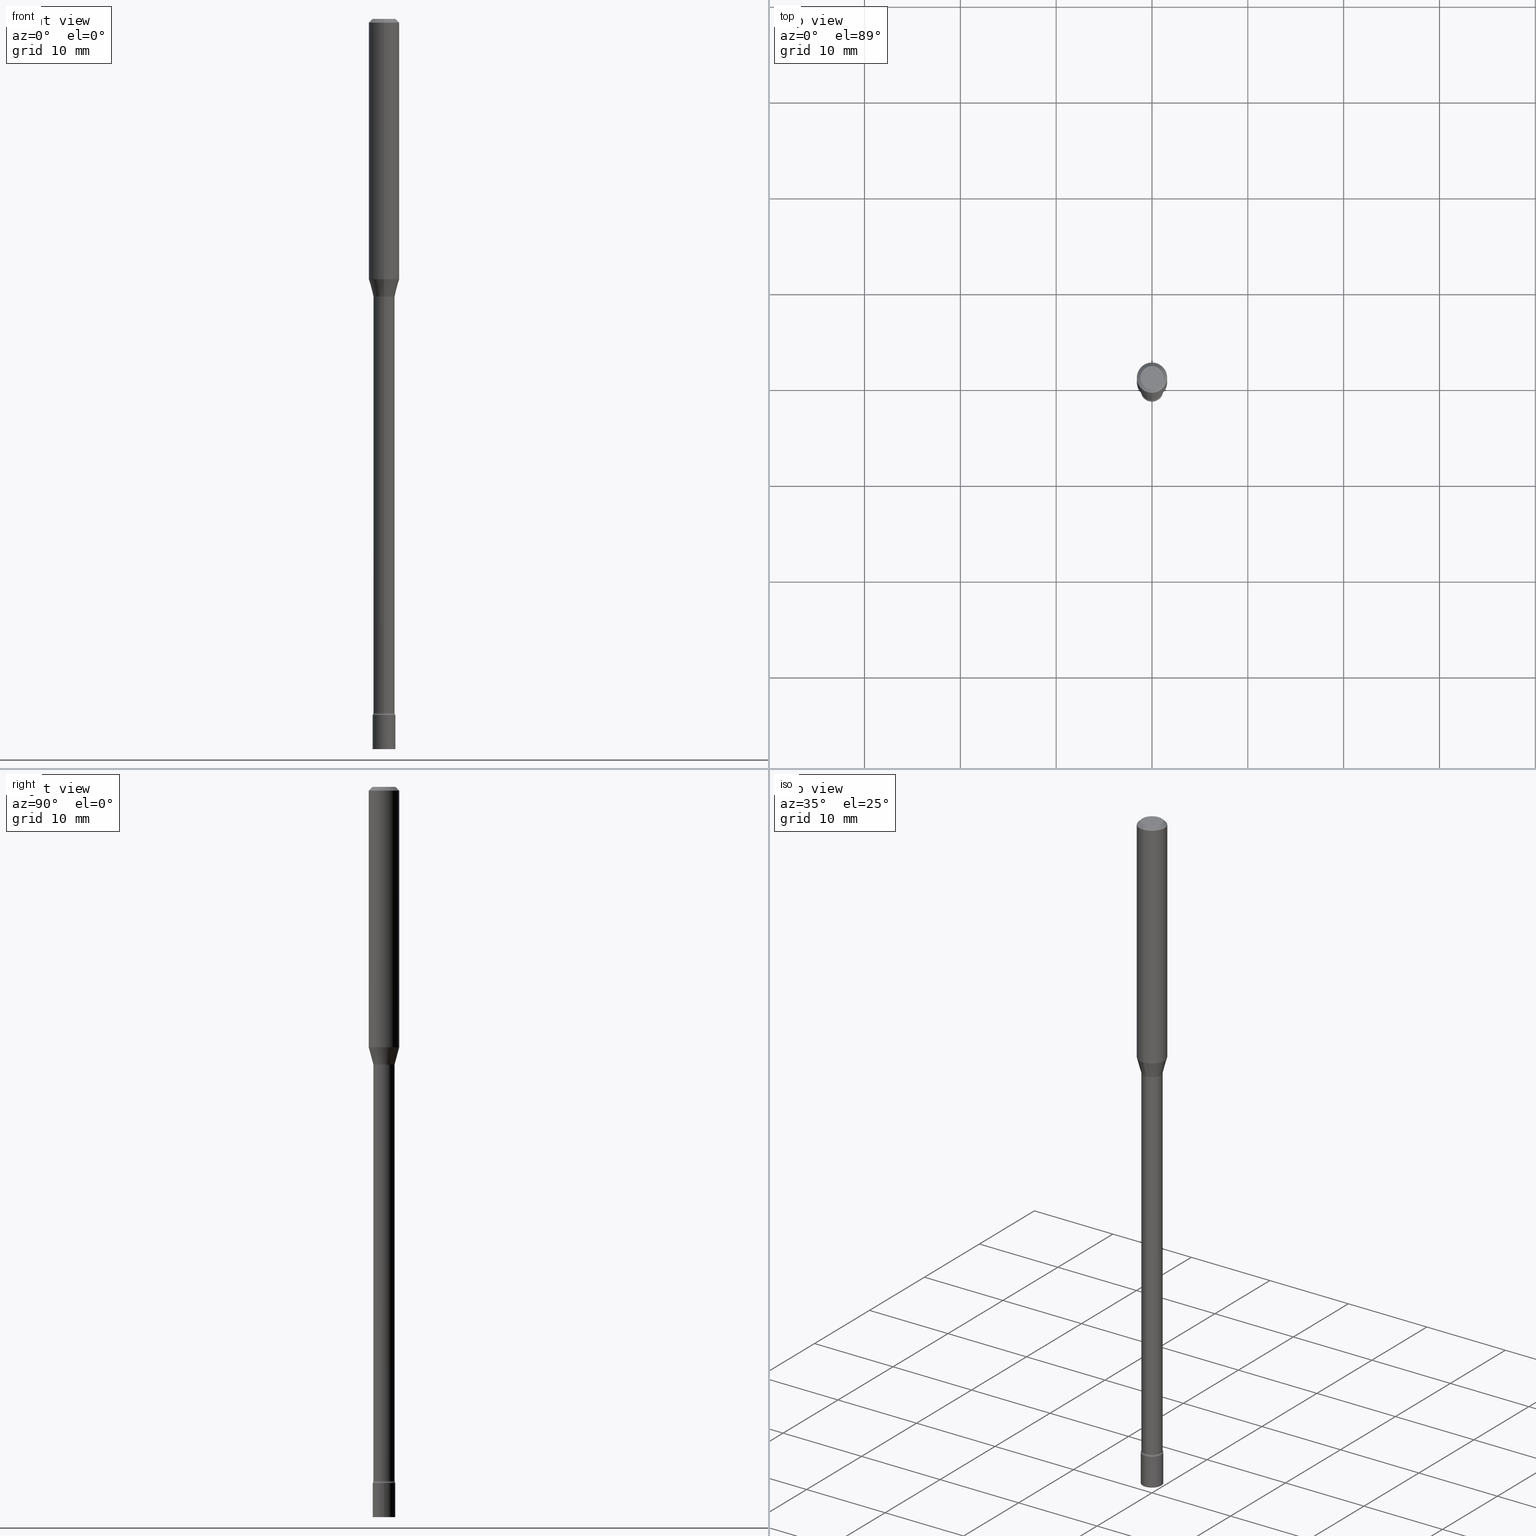
[diagram: canonical four-view strip — front | top / right | iso, engineering-drawing reading convention]
A machine part, canonical four-view strip (front | top / right | iso — engineering-drawing reading convention). The complete STEP part file that produces these views, byte-faithful:
ISO-10303-21;
HEADER;
FILE_DESCRIPTION (( 'STEP AP203' ),
    '1' );
FILE_NAME ('03664.STEP',
    '2024-03-08T22:27:00',
    ( '' ),
    ( '' ),
    'SwSTEP 2.0',
    'SolidWorks 2023',
    '' );
FILE_SCHEMA (( 'CONFIG_CONTROL_DESIGN' ));
ENDSEC;

DATA;
#1 = ORIENTED_EDGE ( 'NONE', *, *, #173, .F. ) ;
#2 = DIRECTION ( 'NONE',  ( -6.982962677686266711E-15, -1.000000000000000000, 3.089549021340711373E-15 ) ) ;
#3 = EDGE_CURVE ( 'NONE', #155, #232, #441, .T. ) ;
#4 = AXIS2_PLACEMENT_3D ( 'NONE', #181, #471, #508 ) ;
#5 = CIRCLE ( 'NONE', #97, 0.06250000000000000000 ) ;
#6 = LOCAL_TIME ( 17, 27, 0.000000000000000000, #99 ) ;
#7 = LINE ( 'NONE', #367, #258 ) ;
#8 = PERSON_AND_ORGANIZATION ( #273, #371 ) ;
#9 = DIRECTION ( 'NONE',  ( -2.445452186311663460E-29, 3.491505139447903761E-15, 1.000000000000000000 ) ) ;
#10 = VERTEX_POINT ( 'NONE', #77 ) ;
#11 = EDGE_CURVE ( 'NONE', #472, #333, #481, .T. ) ;
#12 = SECURITY_CLASSIFICATION_LEVEL ( 'unclassified' ) ;
#13 = CARTESIAN_POINT ( 'NONE',  ( -3.247077645123415839E-16, -0.04650000000000999167, -2.859999999999999876 ) ) ;
#14 = ORIENTED_EDGE ( 'NONE', *, *, #239, .F. ) ;
#15 = CIRCLE ( 'NONE', #4, 0.04649999999999999967 ) ;
#16 = LINE ( 'NONE', #370, #183 ) ;
#17 = ORIENTED_EDGE ( 'NONE', *, *, #314, .T. ) ;
#18 = DIRECTION ( 'NONE',  ( -6.982962677686265922E-15, -1.000000000000000000, 3.491505139447903761E-15 ) ) ;
#19 = CYLINDRICAL_SURFACE ( 'NONE', #207, 0.04649999999999999967 ) ;
#20 = EDGE_CURVE ( 'NONE', #88, #401, #198, .T. ) ;
#21 = CARTESIAN_POINT ( 'NONE',  ( 7.070482203943326931E-46, -1.009491213593364023E-31, -2.891278039914299951E-17 ) ) ;
#22 = AXIS2_PLACEMENT_3D ( 'NONE', #104, #434, #381 ) ;
#23 = CIRCLE ( 'NONE', #336, 0.04421111260566398804 ) ;
#24 = ORIENTED_EDGE ( 'NONE', *, *, #84, .F. ) ;
#25 = CARTESIAN_POINT ( 'NONE',  ( 3.668178279467502056E-31, -5.237257709171866513E-17, -0.01500000000000003067 ) ) ;
#26 = EDGE_LOOP ( 'NONE', ( #217, #44, #130, #312 ) ) ;
#27 = FACE_OUTER_BOUND ( 'NONE', #41, .T. ) ;
#28 = DIRECTION ( 'NONE',  ( -2.445468806185136597E-29, 3.491481338843145583E-15, 1.000000000000000000 ) ) ;
#29 = CC_DESIGN_PERSON_AND_ORGANIZATION_ASSIGNMENT ( #311, #176, ( #242 ) ) ;
#30 = CYLINDRICAL_SURFACE ( 'NONE', #108, 0.04370000000000010681 ) ;
#31 = PLANE ( 'NONE',  #509 ) ;
#32 = EDGE_LOOP ( 'NONE', ( #209, #405, #113, #357 ) ) ;
#33 = FACE_OUTER_BOUND ( 'NONE', #32, .T. ) ;
#34 = CIRCLE ( 'NONE', #402, 0.06250000000000000000 ) ;
#35 = EDGE_LOOP ( 'NONE', ( #347, #1 ) ) ;
#36 = CARTESIAN_POINT ( 'NONE',  ( 3.204547738278756968E-16, 0.04369999999999025359, -2.851273030308291823 ) ) ;
#37 = ORIENTED_EDGE ( 'NONE', *, *, #165, .F. ) ;
#38 =( LENGTH_UNIT ( ) NAMED_UNIT ( * ) SI_UNIT ( $, .METRE. ) );
#39 = LENGTH_MEASURE_WITH_UNIT ( LENGTH_MEASURE( 0.02539999999999999897 ), #38 );
#40 = AXIS2_PLACEMENT_3D ( 'NONE', #418, #158, #313 ) ;
#41 = EDGE_LOOP ( 'NONE', ( #95, #24 ) ) ;
#42 = CONICAL_SURFACE ( 'NONE', #431, 0.04421111260566398804, 0.2617993877991495744 ) ;
#43 = LOCAL_TIME ( 17, 27, 0.000000000000000000, #409 ) ;
#44 = ORIENTED_EDGE ( 'NONE', *, *, #485, .T. ) ;
#45 = EDGE_CURVE ( 'NONE', #10, #221, #126, .T. ) ;
#46 = CIRCLE ( 'NONE', #225, 0.01499999999999998557 ) ;
#47 = PERSON_AND_ORGANIZATION_ROLE ( 'design_owner' ) ;
#48 = ADVANCED_FACE ( 'NONE', ( #320 ), #421, .T. ) ;
#49 = PERSON_AND_ORGANIZATION ( #273, #371 ) ;
#50 = CARTESIAN_POINT ( 'NONE',  ( 3.105071755272341079E-16, 0.04369999999999601287, -1.141974787463811092 ) ) ;
#51 = EDGE_LOOP ( 'NONE', ( #147, #424 ) ) ;
#52 = DIRECTION ( 'NONE',  ( -2.445452186311663460E-29, 3.491505139447903761E-15, 1.000000000000000000 ) ) ;
#53 = AXIS2_PLACEMENT_3D ( 'NONE', #479, #270, #442 ) ;
#54 = LOCAL_TIME ( 17, 27, 0.000000000000000000, #233 ) ;
#55 = LOCAL_TIME ( 17, 27, 0.000000000000000000, #449 ) ;
#56 = DIRECTION ( 'NONE',  ( -2.445468806185136597E-29, 3.491481338843145583E-15, 1.000000000000000000 ) ) ;
#57 = ORIENTED_EDGE ( 'NONE', *, *, #58, .F. ) ;
#58 = EDGE_CURVE ( 'NONE', #419, #221, #7, .T. ) ;
#59 = PRODUCT_DEFINITION_SHAPE ( 'NONE', 'NONE',  #122 ) ;
#60 = PLANE ( 'NONE',  #163 ) ;
#61 = DIRECTION ( 'NONE',  ( 1.000000000000000000, -6.982962677686280121E-15, 0.000000000000000000 ) ) ;
#62 = VECTOR ( 'NONE', #319, 39.37007874015748143 ) ;
#63 = AXIS2_PLACEMENT_3D ( 'NONE', #295, #466, #134 ) ;
#64 = ORIENTED_EDGE ( 'NONE', *, *, #314, .F. ) ;
#65 = CARTESIAN_POINT ( 'NONE',  ( 2.783150796720597811E-29, -3.973655819157387620E-15, -1.138092501787273170 ) ) ;
#66 = EDGE_CURVE ( 'NONE', #353, #263, #372, .T. ) ;
#67 = DIRECTION ( 'NONE',  ( 1.000000000000000000, -6.982962677686265922E-15, 4.876176775795935793E-29 ) ) ;
#68 = EDGE_LOOP ( 'NONE', ( #14, #345, #427, #187 ) ) ;
#69 = DIRECTION ( 'NONE',  ( -2.445452186311663460E-29, 3.491505139447903761E-15, 1.000000000000000000 ) ) ;
#70 = DIRECTION ( 'NONE',  ( 6.982962677686265922E-15, 1.000000000000000000, -3.491505139447903761E-15 ) ) ;
#71 = ORIENTED_EDGE ( 'NONE', *, *, #492, .T. ) ;
#72 = DIRECTION ( 'NONE',  ( 6.982962677686265922E-15, 1.000000000000000000, -3.483106191921935554E-15 ) ) ;
#73 = EDGE_LOOP ( 'NONE', ( #64, #321, #376, #455 ) ) ;
#74 = ORIENTED_EDGE ( 'NONE', *, *, #66, .F. ) ;
#75 = CARTESIAN_POINT ( 'NONE',  ( 2.783150796720597811E-29, -3.973655819157387620E-15, -1.138092501787273170 ) ) ;
#76 = CIRCLE ( 'NONE', #361, 0.06250000000000000000 ) ;
#77 = CARTESIAN_POINT ( 'NONE',  ( 4.440892098500886486E-16, 0.06249999999999626688, -1.069837444817705485 ) ) ;
#78 = DIRECTION ( 'NONE',  ( -2.445452186311663460E-29, 3.491505139447903761E-15, 1.000000000000000000 ) ) ;
#79 = CC_DESIGN_PERSON_AND_ORGANIZATION_ASSIGNMENT ( #404, #90, ( #122 ) ) ;
#80 = DIRECTION ( 'NONE',  ( 0.000000000000000000, 0.000000000000000000, 1.000000000000000000 ) ) ;
#81 = ORIENTED_EDGE ( 'NONE', *, *, #457, .F. ) ;
#82 = AXIS2_PLACEMENT_3D ( 'NONE', #189, #78, #433 ) ;
#83 = APPROVAL_PERSON_ORGANIZATION ( #49, #498, #277 ) ;
#84 = EDGE_CURVE ( 'NONE', #232, #226, #250, .T. ) ;
#85 = DATE_AND_TIME ( #86, #54 ) ;
#86 = CALENDAR_DATE ( 2024, 8, 3 ) ;
#87 = AXIS2_PLACEMENT_3D ( 'NONE', #75, #227, #276 ) ;
#88 = VERTEX_POINT ( 'NONE', #50 ) ;
#89 = MANIFOLD_SOLID_BREP ( 'Body-Move/Copy2[1]', #152 ) ;
#90 = PERSON_AND_ORGANIZATION_ROLE ( 'creator' ) ;
#91 = EDGE_LOOP ( 'NONE', ( #179, #436, #71, #171 ) ) ;
#92 = DATE_TIME_ROLE ( 'classification_date' ) ;
#93 = FACE_OUTER_BOUND ( 'NONE', #35, .T. ) ;
#94 = DIRECTION ( 'NONE',  ( -2.445452186311663460E-29, 3.491505139447903761E-15, 1.000000000000000000 ) ) ;
#95 = ORIENTED_EDGE ( 'NONE', *, *, #191, .F. ) ;
#96 = DIRECTION ( 'NONE',  ( -2.445468806185136877E-29, 3.491481338843145188E-15, 1.000000000000000000 ) ) ;
#97 = AXIS2_PLACEMENT_3D ( 'NONE', #440, #192, #473 ) ;
#98 = CC_DESIGN_DATE_AND_TIME_ASSIGNMENT ( #196, #244, ( #122 ) ) ;
#99 = COORDINATED_UNIVERSAL_TIME_OFFSET ( 5, 0, .BEHIND. ) ;
#100 = DIRECTION ( 'NONE',  ( -6.982962677686266711E-15, -1.000000000000000000, 3.089549021340711373E-15 ) ) ;
#101 = ADVANCED_FACE ( 'NONE', ( #204 ), #456, .T. ) ;
#102 = EDGE_LOOP ( 'NONE', ( #174, #304, #119, #140 ) ) ;
#103 = CARTESIAN_POINT ( 'NONE',  ( 2.792663720192650802E-29, -3.987183659859263633E-15, -1.141974787463811092 ) ) ;
#104 = CARTESIAN_POINT ( 'NONE',  ( 6.972699253535895201E-29, -9.955166577268146515E-15, -2.851273030308291823 ) ) ;
#105 = ORIENTED_EDGE ( 'NONE', *, *, #282, .F. ) ;
#106 = CARTESIAN_POINT ( 'NONE',  ( -3.051554690148215328E-16, -0.04370000000001016127, -2.851273030308291823 ) ) ;
#107 = APPROVAL ( #330, 'UNSPECIFIED' ) ;
#108 = AXIS2_PLACEMENT_3D ( 'NONE', #145, #391, #443 ) ;
#109 = DIRECTION ( 'NONE',  ( -6.982962677686262766E-15, -1.000000000000000000, 0.000000000000000000 ) ) ;
#110 = LOCAL_TIME ( 17, 27, 0.000000000000000000, #247 ) ;
#111 = DIRECTION ( 'NONE',  ( -2.445468806185136597E-29, 3.491481338843145583E-15, 1.000000000000000000 ) ) ;
#112 = EDGE_LOOP ( 'NONE', ( #195, #374, #359, #482 ) ) ;
#113 = ORIENTED_EDGE ( 'NONE', *, *, #20, .T. ) ;
#114 = CARTESIAN_POINT ( 'NONE',  ( 6.972699253535895201E-29, -9.955166577268146515E-15, -2.851273030308291823 ) ) ;
#115 = EDGE_LOOP ( 'NONE', ( #266, #37, #379, #450 ) ) ;
#116 = EDGE_CURVE ( 'NONE', #353, #401, #448, .T. ) ;
#117 = DIRECTION ( 'NONE',  ( -6.982962677686265922E-15, -1.000000000000000000, 3.491505139447903761E-15 ) ) ;
#118 = AXIS2_PLACEMENT_3D ( 'NONE', #103, #210, #18 ) ;
#119 = ORIENTED_EDGE ( 'NONE', *, *, #387, .F. ) ;
#120 = DIRECTION ( 'NONE',  ( -2.445452186311663460E-29, 3.491505139447903761E-15, 1.000000000000000000 ) ) ;
#121 = ORIENTED_EDGE ( 'NONE', *, *, #429, .T. ) ;
#122 = PRODUCT_DEFINITION ( 'UNKNOWN', '', #462, #477 ) ;
#123 = APPLICATION_PROTOCOL_DEFINITION ( 'international standard', 'config_control_design', 1994, #231 ) ;
#124 = EDGE_LOOP ( 'NONE', ( #81, #393, #121, #57 ) ) ;
#125 = CARTESIAN_POINT ( 'NONE',  ( 3.304023721285164969E-16, 0.04649999999999002154, -2.859999999999999876 ) ) ;
#126 = LINE ( 'NONE', #164, #62 ) ;
#127 = PERSON_AND_ORGANIZATION ( #273, #371 ) ;
#128 = AXIS2_PLACEMENT_3D ( 'NONE', #392, #476, #267 ) ;
#129 = TOROIDAL_SURFACE ( 'NONE', #286, 0.05870000000000021034, 0.01499999999999999771 ) ;
#130 = ORIENTED_EDGE ( 'NONE', *, *, #439, .T. ) ;
#131 = APPROVAL_DATE_TIME ( #375, #107 ) ;
#132 = CARTESIAN_POINT ( 'NONE',  ( -3.087245492643086004E-16, -0.04421111260566795709, -1.138092501787273170 ) ) ;
#133 = CALENDAR_DATE ( 2024, 8, 3 ) ;
#134 = DIRECTION ( 'NONE',  ( -6.982962677686266711E-15, -1.000000000000000000, 3.125684203277188892E-15 ) ) ;
#135 = ADVANCED_FACE ( 'NONE', ( #489 ), #301, .T. ) ;
#136 = PLANE ( 'NONE',  #328 ) ;
#137 = LINE ( 'NONE', #293, #259 ) ;
#138 = DIRECTION ( 'NONE',  ( -6.982962677686265922E-15, -1.000000000000000000, 0.000000000000000000 ) ) ;
#139 = CARTESIAN_POINT ( 'NONE',  ( -4.364351673553912750E-16, -0.06250000000000005551, -0.01499999999999981209 ) ) ;
#140 = ORIENTED_EDGE ( 'NONE', *, *, #439, .F. ) ;
#141 = CARTESIAN_POINT ( 'NONE',  ( -3.051554690148619619E-16, -0.04370000000000398566, -1.141974787463810870 ) ) ;
#142 = CARTESIAN_POINT ( 'NONE',  ( 3.316907271900976096E-16, 0.04749999999999999362, -1.803028843233469060E-16 ) ) ;
#143 = CIRCLE ( 'NONE', #453, 0.04649999999999999967 ) ;
#144 = AXIS2_PLACEMENT_3D ( 'NONE', #331, #56, #208 ) ;
#145 = CARTESIAN_POINT ( 'NONE',  ( 0.000000000000000000, 0.000000000000000000, 0.000000000000000000 ) ) ;
#146 = DIRECTION ( 'NONE',  ( -2.438088387897960049E-29, 3.491481338843145188E-15, 1.000000000000000000 ) ) ;
#147 = ORIENTED_EDGE ( 'NONE', *, *, #165, .T. ) ;
#148 = DIRECTION ( 'NONE',  ( 2.445452186311663460E-29, -3.491505139447903761E-15, -1.000000000000000000 ) ) ;
#149 = VERTEX_POINT ( 'NONE', #216 ) ;
#150 = EDGE_CURVE ( 'NONE', #256, #155, #169, .T. ) ;
#151 = ORIENTED_EDGE ( 'NONE', *, *, #378, .F. ) ;
#152 = CLOSED_SHELL ( 'NONE', ( #297, #135, #403, #350 ) ) ;
#153 = CARTESIAN_POINT ( 'NONE',  ( 0.000000000000000000, 0.000000000000000000, 0.000000000000000000 ) ) ;
#154 = AXIS2_PLACEMENT_3D ( 'NONE', #358, #162, #237 ) ;
#155 = VERTEX_POINT ( 'NONE', #36 ) ;
#156 = ADVANCED_FACE ( 'NONE', ( #211 ), #315, .F. ) ;
#157 =( NAMED_UNIT ( * ) SI_UNIT ( $, .STERADIAN. ) SOLID_ANGLE_UNIT ( ) );
#158 = DIRECTION ( 'NONE',  ( -2.445452186311663460E-29, 3.491505139447903761E-15, 1.000000000000000000 ) ) ;
#159 = DIRECTION ( 'NONE',  ( -6.982962677686266711E-15, -1.000000000000000000, 0.000000000000000000 ) ) ;
#160 = APPLICATION_PROTOCOL_DEFINITION ( 'international standard', 'config_control_design', 1994, #342 ) ;
#161 = CIRCLE ( 'NONE', #307, 0.04749999999999999362 ) ;
#162 = DIRECTION ( 'NONE',  ( -2.445452186311663460E-29, 3.491505139447903761E-15, 1.000000000000000000 ) ) ;
#163 = AXIS2_PLACEMENT_3D ( 'NONE', #203, #499, #463 ) ;
#164 = CARTESIAN_POINT ( 'NONE',  ( 4.440892098500625669E-16, 0.06250000000000000000, -2.182190712154939851E-16 ) ) ;
#165 = EDGE_CURVE ( 'NONE', #419, #223, #161, .T. ) ;
#166 = PERSON_AND_ORGANIZATION_ROLE ( 'creator' ) ;
#167 = CARTESIAN_POINT ( 'NONE',  ( 2.792644740716173918E-29, -3.987210839549823316E-15, -1.141974787463811092 ) ) ;
#168 = CARTESIAN_POINT ( 'NONE',  ( 4.170885858912066812E-16, 0.05869999999999601925, -1.141974787463811314 ) ) ;
#169 = CIRCLE ( 'NONE', #385, 0.04370000000000020396 ) ;
#170 = TOROIDAL_SURFACE ( 'NONE', #519, 0.05870000000000000218, 0.01499999999999998557 ) ;
#171 = ORIENTED_EDGE ( 'NONE', *, *, #191, .T. ) ;
#172 = CARTESIAN_POINT ( 'NONE',  ( 0.000000000000000000, 0.000000000000000000, 0.000000000000000000 ) ) ;
#173 = EDGE_CURVE ( 'NONE', #474, #243, #143, .T. ) ;
#174 = ORIENTED_EDGE ( 'NONE', *, *, #150, .T. ) ;
#175 = CARTESIAN_POINT ( 'NONE',  ( -3.087245492643086004E-16, -0.04421111260566795709, -1.138092501787273170 ) ) ;
#176 = PERSON_AND_ORGANIZATION_ROLE ( 'classification_officer' ) ;
#177 = FACE_OUTER_BOUND ( 'NONE', #115, .T. ) ;
#178 = VECTOR ( 'NONE', #346, 39.37007874015748143 ) ;
#179 = ORIENTED_EDGE ( 'NONE', *, *, #3, .F. ) ;
#180 = CARTESIAN_POINT ( 'NONE',  ( 2.616236318427541251E-29, -3.735342936954831179E-15, -1.069837444817705263 ) ) ;
#181 = CARTESIAN_POINT ( 'NONE',  ( 6.993993252851358162E-29, -9.985704698821003669E-15, -2.859999999999999876 ) ) ;
#182 = DIRECTION ( 'NONE',  ( 1.000000000000000000, -6.982962677686267499E-15, 4.876176775795936353E-29 ) ) ;
#183 = VECTOR ( 'NONE', #96, 39.37007874015748143 ) ;
#184 = ORIENTED_EDGE ( 'NONE', *, *, #202, .F. ) ;
#185 = FACE_OUTER_BOUND ( 'NONE', #91, .T. ) ;
#186 = EDGE_CURVE ( 'NONE', #333, #472, #447, .T. ) ;
#187 = ORIENTED_EDGE ( 'NONE', *, *, #387, .T. ) ;
#188 = DIRECTION ( 'NONE',  ( -2.445452186311663460E-29, 3.491505139447903761E-15, 1.000000000000000000 ) ) ;
#189 = CARTESIAN_POINT ( 'NONE',  ( 7.070482203943326931E-46, -1.009491213593364023E-31, -2.891278039914299951E-17 ) ) ;
#190 = FACE_OUTER_BOUND ( 'NONE', #102, .T. ) ;
#191 = EDGE_CURVE ( 'NONE', #226, #232, #15, .T. ) ;
#192 = DIRECTION ( 'NONE',  ( -2.445452186311663460E-29, 3.491505139447903761E-15, 1.000000000000000000 ) ) ;
#193 = ORIENTED_EDGE ( 'NONE', *, *, #200, .T. ) ;
#194 =( NAMED_UNIT ( * ) PLANE_ANGLE_UNIT ( ) SI_UNIT ( $, .RADIAN. ) );
#195 = ORIENTED_EDGE ( 'NONE', *, *, #378, .T. ) ;
#196 = DATE_AND_TIME ( #494, #55 ) ;
#197 = CALENDAR_DATE ( 2024, 8, 3 ) ;
#198 = CIRCLE ( 'NONE', #271, 0.04370000000000000273 ) ;
#199 = ADVANCED_FACE ( 'NONE', ( #219 ), #31, .F. ) ;
#200 = EDGE_CURVE ( 'NONE', #243, #474, #354, .T. ) ;
#201 = EDGE_LOOP ( 'NONE', ( #415, #515, #151, #74 ) ) ;
#202 = EDGE_CURVE ( 'NONE', #10, #263, #344, .T. ) ;
#203 = CARTESIAN_POINT ( 'NONE',  ( 3.247077645124847129E-16, 0.04649999999998952888, -3.000000000000000444 ) ) ;
#204 = FACE_OUTER_BOUND ( 'NONE', #26, .T. ) ;
#205 = AXIS2_PLACEMENT_3D ( 'NONE', #341, #111, #388 ) ;
#206 = CIRCLE ( 'NONE', #454, 0.04370000000000020396 ) ;
#207 = AXIS2_PLACEMENT_3D ( 'NONE', #172, #430, #182 ) ;
#208 = DIRECTION ( 'NONE',  ( 1.000000000000000000, -6.982962677686267499E-15, 4.876176775795936353E-29 ) ) ;
#209 = ORIENTED_EDGE ( 'NONE', *, *, #255, .F. ) ;
#210 = DIRECTION ( 'NONE',  ( -2.445452186311663460E-29, 3.491505139447903761E-15, 1.000000000000000000 ) ) ;
#211 = FACE_OUTER_BOUND ( 'NONE', #452, .T. ) ;
#212 = CARTESIAN_POINT ( 'NONE',  ( 3.668178279467502056E-31, -5.237257709171866513E-17, -0.01500000000000003067 ) ) ;
#213 = AXIS2_PLACEMENT_3D ( 'NONE', #222, #228, #109 ) ;
#214 = DIRECTION ( 'NONE',  ( -2.445452186311663460E-29, 3.491505139447903761E-15, 1.000000000000000000 ) ) ;
#215 = CARTESIAN_POINT ( 'NONE',  ( 3.141388490182911727E-16, 0.04421111260566001899, -1.138092501787273392 ) ) ;
#216 = CARTESIAN_POINT ( 'NONE',  ( 3.791140294341899846E-16, 0.04421111260566001899, -1.138092501787273392 ) ) ;
#217 = ORIENTED_EDGE ( 'NONE', *, *, #338, .F. ) ;
#218 = CARTESIAN_POINT ( 'NONE',  ( -0.04649999999999999967, -9.899637950681969902E-15, -3.000000000000000444 ) ) ;
#219 = FACE_OUTER_BOUND ( 'NONE', #51, .T. ) ;
#220 = ADVANCED_FACE ( 'NONE', ( #516 ), #408, .T. ) ;
#221 = VERTEX_POINT ( 'NONE', #318 ) ;
#222 = CARTESIAN_POINT ( 'NONE',  ( -4.098999091801155926E-16, -0.05870000000001016072, -2.851273030308291823 ) ) ;
#223 = VERTEX_POINT ( 'NONE', #493 ) ;
#224 = CARTESIAN_POINT ( 'NONE',  ( 2.616236318427541251E-29, -3.735342936954831179E-15, -1.069837444817705263 ) ) ;
#225 = AXIS2_PLACEMENT_3D ( 'NONE', #168, #327, #389 ) ;
#226 = VERTEX_POINT ( 'NONE', #13 ) ;
#227 = DIRECTION ( 'NONE',  ( -2.445452186311663460E-29, 3.491505139447903761E-15, 1.000000000000000000 ) ) ;
#228 = DIRECTION ( 'NONE',  ( -1.000000000000000000, 6.982962677686265922E-15, -4.883557194083112901E-29 ) ) ;
#229 = ORIENTED_EDGE ( 'NONE', *, *, #66, .T. ) ;
#230 = PRODUCT_RELATED_PRODUCT_CATEGORY ( 'detail', '', ( #435 ) ) ;
#231 = APPLICATION_CONTEXT ( 'configuration controlled 3d designs of mechanical parts and assemblies' ) ;
#232 = VERTEX_POINT ( 'NONE', #125 ) ;
#233 = COORDINATED_UNIVERSAL_TIME_OFFSET ( 5, 0, .BEHIND. ) ;
#234 = AXIS2_PLACEMENT_3D ( 'NONE', #25, #506, #428 ) ;
#235 = APPROVAL_PERSON_ORGANIZATION ( #382, #107, #332 ) ;
#236 = EDGE_LOOP ( 'NONE', ( #253, #339 ) ) ;
#237 = DIRECTION ( 'NONE',  ( -6.982962677686265922E-15, -1.000000000000000000, 3.491505139447903761E-15 ) ) ;
#238 = APPROVAL_DATE_TIME ( #85, #246 ) ;
#239 = EDGE_CURVE ( 'NONE', #149, #88, #46, .T. ) ;
#240 = AXIS2_PLACEMENT_3D ( 'NONE', #407, #360, #365 ) ;
#241 = TOROIDAL_SURFACE ( 'NONE', #118, 0.05870000000000000218, 0.01499999999999998557 ) ;
#242 = SECURITY_CLASSIFICATION ( '', '', #12 ) ;
#243 = VERTEX_POINT ( 'NONE', #425 ) ;
#244 = DATE_TIME_ROLE ( 'creation_date' ) ;
#245 = DIRECTION ( 'NONE',  ( -6.982962677686266711E-15, -1.000000000000000000, 0.000000000000000000 ) ) ;
#246 = APPROVAL ( #490, 'UNSPECIFIED' ) ;
#247 = COORDINATED_UNIVERSAL_TIME_OFFSET ( 5, 0, .BEHIND. ) ;
#248 = DIRECTION ( 'NONE',  ( -6.982962677686265922E-15, -1.000000000000000000, 4.370956789862821150E-15 ) ) ;
#249 = DIRECTION ( 'NONE',  ( -2.445452186311663460E-29, 3.491505139447903761E-15, 1.000000000000000000 ) ) ;
#250 = CIRCLE ( 'NONE', #326, 0.04649999999999999967 ) ;
#251 = VECTOR ( 'NONE', #120, 39.37007874015748143 ) ;
#252 = FACE_OUTER_BOUND ( 'NONE', #68, .T. ) ;
#253 = ORIENTED_EDGE ( 'NONE', *, *, #11, .T. ) ;
#254 = CARTESIAN_POINT ( 'NONE',  ( -0.04649999999999999967, -9.899637950681969902E-15, -2.859999999999999876 ) ) ;
#255 = EDGE_CURVE ( 'NONE', #149, #353, #23, .T. ) ;
#256 = VERTEX_POINT ( 'NONE', #106 ) ;
#257 = DIRECTION ( 'NONE',  ( -2.445452186311663460E-29, 3.491505139447903761E-15, 1.000000000000000000 ) ) ;
#258 = VECTOR ( 'NONE', #324, 39.37007874015748143 ) ;
#259 = VECTOR ( 'NONE', #288, 39.37007874015748143 ) ;
#260 = CYLINDRICAL_SURFACE ( 'NONE', #272, 0.06250000000000000000 ) ;
#261 = ADVANCED_FACE ( 'NONE', ( #27 ), #136, .F. ) ;
#262 = DIRECTION ( 'NONE',  ( 2.445452186311662899E-29, -3.491505139447903761E-15, -1.000000000000000000 ) ) ;
#263 = VERTEX_POINT ( 'NONE', #507 ) ;
#264 = DIRECTION ( 'NONE',  ( -6.982962677686265922E-15, -1.000000000000000000, 3.491505139447903761E-15 ) ) ;
#265 = MANIFOLD_SOLID_BREP ( 'Body-Move/Copy2[2]', #496 ) ;
#266 = ORIENTED_EDGE ( 'NONE', *, *, #451, .F. ) ;
#267 = DIRECTION ( 'NONE',  ( 1.000000000000000000, -6.982962677686280121E-15, 0.000000000000000000 ) ) ;
#268 = ORIENTED_EDGE ( 'NONE', *, *, #485, .F. ) ;
#269 = DIRECTION ( 'NONE',  ( -6.982962677686266711E-15, -1.000000000000000000, 3.089549021340711373E-15 ) ) ;
#270 = DIRECTION ( 'NONE',  ( 1.000000000000000000, -7.105427357601001070E-15, 4.926315800015426813E-29 ) ) ;
#271 = AXIS2_PLACEMENT_3D ( 'NONE', #167, #9, #363 ) ;
#272 = AXIS2_PLACEMENT_3D ( 'NONE', #153, #394, #264 ) ;
#273 = PERSON ( 'UNSPECIFIED', 'UNSPECIFIED', 'UNSPECIFIED', ('UNSPECIFIED'), ('UNSPECIFIED'), ('UNSPECIFIED') ) ;
#274 = DIRECTION ( 'NONE',  ( -6.982962677686265922E-15, -1.000000000000000000, 0.000000000000000000 ) ) ;
#275 = ORIENTED_EDGE ( 'NONE', *, *, #202, .T. ) ;
#276 = DIRECTION ( 'NONE',  ( -6.982962677686266711E-15, -1.000000000000000000, 3.089549021340711373E-15 ) ) ;
#277 = APPROVAL_ROLE ( '' ) ;
#278 = EDGE_LOOP ( 'NONE', ( #193, #17, #459, #395 ) ) ;
#279 = AXIS2_PLACEMENT_3D ( 'NONE', #224, #188, #348 ) ;
#280 = APPROVAL_PERSON_ORGANIZATION ( #317, #246, #281 ) ;
#281 = APPROVAL_ROLE ( '' ) ;
#282 = EDGE_CURVE ( 'NONE', #149, #10, #417, .T. ) ;
#283 = DIRECTION ( 'NONE',  ( -2.445452186311663460E-29, 3.491505139447903761E-15, 1.000000000000000000 ) ) ;
#284 = MECHANICAL_CONTEXT ( 'NONE', #231, 'mechanical' ) ;
#285 = DIRECTION ( 'NONE',  ( 1.000000000000000000, 0.000000000000000000, 0.000000000000000000 ) ) ;
#286 = AXIS2_PLACEMENT_3D ( 'NONE', #114, #310, #517 ) ;
#287 = EDGE_CURVE ( 'NONE', #221, #396, #34, .T. ) ;
#288 = DIRECTION ( 'NONE',  ( -2.445452186311663460E-29, 3.491505139447903761E-15, 1.000000000000000000 ) ) ;
#289 = DIRECTION ( 'NONE',  ( -1.000000000000000000, 6.982962677686265922E-15, -4.883557194083112901E-29 ) ) ;
#290 = CARTESIAN_POINT ( 'NONE',  ( 3.247077645124813109E-16, 0.04649999999999001460, -2.859999999999999876 ) ) ;
#291 = CC_DESIGN_APPROVAL ( #246, ( #122 ) ) ;
#292 = ADVANCED_FACE ( 'NONE', ( #252 ), #241, .F. ) ;
#293 = CARTESIAN_POINT ( 'NONE',  ( 3.105071755271644416E-16, 0.04370000000000010681, -1.525787745938737526E-16 ) ) ;
#294 = DIRECTION ( 'NONE',  ( -2.445452186311663460E-29, 3.491505139447903761E-15, 1.000000000000000000 ) ) ;
#295 = CARTESIAN_POINT ( 'NONE',  ( 2.792644740716173918E-29, -3.987210839549823316E-15, -1.141974787463811092 ) ) ;
#296 = FACE_OUTER_BOUND ( 'NONE', #73, .T. ) ;
#297 = ADVANCED_FACE ( 'NONE', ( #504 ), #19, .T. ) ;
#298 = AXIS2_PLACEMENT_3D ( 'NONE', #323, #80, #285 ) ;
#299 = CC_DESIGN_APPROVAL ( #107, ( #242 ) ) ;
#300 = CARTESIAN_POINT ( 'NONE',  ( -4.287811248607203282E-16, -0.06250000000000005551, -0.01499999999999981209 ) ) ;
#301 = PLANE ( 'NONE',  #410 ) ;
#302 = ORIENTED_EDGE ( 'NONE', *, *, #84, .T. ) ;
#303 = CARTESIAN_POINT ( 'NONE',  ( 6.972651865738893707E-29, -9.955234439290598531E-15, -2.851273030308291823 ) ) ;
#304 = ORIENTED_EDGE ( 'NONE', *, *, #338, .T. ) ;
#305 = ORIENTED_EDGE ( 'NONE', *, *, #45, .F. ) ;
#306 = CARTESIAN_POINT ( 'NONE',  ( 0.04649999999999999967, -1.031034439360380713E-14, -2.859999999999999876 ) ) ;
#307 = AXIS2_PLACEMENT_3D ( 'NONE', #21, #294, #390 ) ;
#308 = AXIS2_PLACEMENT_3D ( 'NONE', #480, #148, #72 ) ;
#309 = CC_DESIGN_DATE_AND_TIME_ASSIGNMENT ( #423, #92, ( #242 ) ) ;
#310 = DIRECTION ( 'NONE',  ( -2.445452186311663460E-29, 3.491505139447903761E-15, 1.000000000000000000 ) ) ;
#311 = PERSON_AND_ORGANIZATION ( #273, #371 ) ;
#312 = ORIENTED_EDGE ( 'NONE', *, *, #20, .F. ) ;
#313 = DIRECTION ( 'NONE',  ( -6.982962677686264344E-15, -1.000000000000000000, 3.491505139447903367E-15 ) ) ;
#314 = EDGE_CURVE ( 'NONE', #474, #333, #384, .T. ) ;
#315 = TOROIDAL_SURFACE ( 'NONE', #22, 0.05870000000000021034, 0.01499999999999999771 ) ;
#316 = VECTOR ( 'NONE', #340, 39.37007874015748143 ) ;
#317 = PERSON_AND_ORGANIZATION ( #273, #371 ) ;
#318 = CARTESIAN_POINT ( 'NONE',  ( 4.440892098500889444E-16, 0.06249999999999995143, -0.01500000000000024751 ) ) ;
#319 = DIRECTION ( 'NONE',  ( -2.445452186311663460E-29, 3.491505139447903761E-15, 1.000000000000000000 ) ) ;
#320 = FACE_OUTER_BOUND ( 'NONE', #325, .T. ) ;
#321 = ORIENTED_EDGE ( 'NONE', *, *, #173, .T. ) ;
#322 = CC_DESIGN_PERSON_AND_ORGANIZATION_ASSIGNMENT ( #127, #414, ( #462 ) ) ;
#323 = CARTESIAN_POINT ( 'NONE',  ( 0.000000000000000000, 0.000000000000000000, 0.000000000000000000 ) ) ;
#324 = DIRECTION ( 'NONE',  ( 4.937700262164548042E-15, 0.7071067811865451302, -0.7071067811865499042 ) ) ;
#325 = EDGE_LOOP ( 'NONE', ( #105, #465, #229, #184 ) ) ;
#326 = AXIS2_PLACEMENT_3D ( 'NONE', #491, #283, #245 ) ;
#327 = DIRECTION ( 'NONE',  ( 1.000000000000000000, -7.105427357601001070E-15, 4.926315800015426813E-29 ) ) ;
#328 = AXIS2_PLACEMENT_3D ( 'NONE', #290, #461, #380 ) ;
#329 = CARTESIAN_POINT ( 'NONE',  ( 2.783150796720597811E-29, -3.973655819157387620E-15, -1.138092501787273170 ) ) ;
#330 = APPROVAL_STATUS ( 'not_yet_approved' ) ;
#331 = CARTESIAN_POINT ( 'NONE',  ( 0.000000000000000000, 0.000000000000000000, 0.000000000000000000 ) ) ;
#332 = APPROVAL_ROLE ( '' ) ;
#333 = VERTEX_POINT ( 'NONE', #254 ) ;
#334 = CARTESIAN_POINT ( 'NONE',  ( 2.783150796720597811E-29, -3.973655819157387620E-15, -1.138092501787273170 ) ) ;
#335 = ADVANCED_FACE ( 'NONE', ( #177 ), #512, .T. ) ;
#336 = AXIS2_PLACEMENT_3D ( 'NONE', #65, #52, #100 ) ;
#337 = CARTESIAN_POINT ( 'NONE',  ( -0.04649999999999999967, 3.304023721284465841E-16, -2.287304816968531530E-30 ) ) ;
#338 = EDGE_CURVE ( 'NONE', #155, #88, #137, .T. ) ;
#339 = ORIENTED_EDGE ( 'NONE', *, *, #186, .T. ) ;
#340 = DIRECTION ( 'NONE',  ( -2.445468806185136877E-29, 3.491481338843145188E-15, 1.000000000000000000 ) ) ;
#341 = CARTESIAN_POINT ( 'NONE',  ( 6.994040785689491519E-29, -9.985636629091396422E-15, -2.859999999999999876 ) ) ;
#342 = APPLICATION_CONTEXT ( 'configuration controlled 3d designs of mechanical parts and assemblies' ) ;
#343 = CARTESIAN_POINT ( 'NONE',  ( 3.840629472727447874E-16, 0.04749999999999999362, -1.947592745229184365E-16 ) ) ;
#344 = CIRCLE ( 'NONE', #279, 0.06250000000000000000 ) ;
#345 = ORIENTED_EDGE ( 'NONE', *, *, #475, .F. ) ;
#346 = DIRECTION ( 'NONE',  ( -4.851104656540964275E-15, -0.7071067811865500152, -0.7071067811865450192 ) ) ;
#347 = ORIENTED_EDGE ( 'NONE', *, *, #200, .F. ) ;
#348 = DIRECTION ( 'NONE',  ( -6.982962677686265922E-15, -1.000000000000000000, 4.370956789862821150E-15 ) ) ;
#349 = CARTESIAN_POINT ( 'NONE',  ( 2.792663720192650802E-29, -3.987183659859263633E-15, -1.141974787463811092 ) ) ;
#350 = ADVANCED_FACE ( 'NONE', ( #93 ), #60, .T. ) ;
#351 = UNCERTAINTY_MEASURE_WITH_UNIT (LENGTH_MEASURE( 1.000000000000000082E-05 ), #356, 'distance_accuracy_value', 'NONE');
#352 = FACE_OUTER_BOUND ( 'NONE', #383, .T. ) ;
#353 = VERTEX_POINT ( 'NONE', #175 ) ;
#354 = CIRCLE ( 'NONE', #128, 0.04649999999999999967 ) ;
#355 = CIRCLE ( 'NONE', #87, 0.04421111260566398804 ) ;
#356 =( CONVERSION_BASED_UNIT ( 'INCH', #39 ) LENGTH_UNIT ( ) NAMED_UNIT ( #501 ) );
#357 = ORIENTED_EDGE ( 'NONE', *, *, #116, .F. ) ;
#358 = CARTESIAN_POINT ( 'NONE',  ( 0.000000000000000000, 0.000000000000000000, 0.000000000000000000 ) ) ;
#359 = ORIENTED_EDGE ( 'NONE', *, *, #429, .F. ) ;
#360 = DIRECTION ( 'NONE',  ( -2.445468806185136597E-29, 3.491481338843145583E-15, 1.000000000000000000 ) ) ;
#361 = AXIS2_PLACEMENT_3D ( 'NONE', #180, #249, #248 ) ;
#362 = DATE_AND_TIME ( #197, #43 ) ;
#363 = DIRECTION ( 'NONE',  ( -6.982962677686266711E-15, -1.000000000000000000, 3.125684203277188892E-15 ) ) ;
#364 = PERSON_AND_ORGANIZATION ( #273, #371 ) ;
#365 = DIRECTION ( 'NONE',  ( 1.000000000000000000, -6.982962677686280121E-15, 0.000000000000000000 ) ) ;
#366 = EDGE_CURVE ( 'NONE', #243, #472, #16, .T. ) ;
#367 = CARTESIAN_POINT ( 'NONE',  ( 4.364351673553919652E-16, 0.06249999999999995143, -0.01500000000000024751 ) ) ;
#368 = CALENDAR_DATE ( 2024, 8, 3 ) ;
#369 = AXIS2_PLACEMENT_3D ( 'NONE', #486, #289, #159 ) ;
#370 = CARTESIAN_POINT ( 'NONE',  ( 0.04649999999999999967, -3.247077645124114474E-16, 2.267422200745110326E-30 ) ) ;
#371 = ORGANIZATION ( 'UNSPECIFIED', 'UNSPECIFIED', '' ) ;
#372 = LINE ( 'NONE', #132, #469 ) ;
#373 = CC_DESIGN_SECURITY_CLASSIFICATION ( #242, ( #462 ) ) ;
#374 = ORIENTED_EDGE ( 'NONE', *, *, #45, .T. ) ;
#375 = DATE_AND_TIME ( #133, #6 ) ;
#376 = ORIENTED_EDGE ( 'NONE', *, *, #366, .T. ) ;
#377 = FACE_OUTER_BOUND ( 'NONE', #201, .T. ) ;
#378 = EDGE_CURVE ( 'NONE', #263, #10, #76, .T. ) ;
#379 = ORIENTED_EDGE ( 'NONE', *, *, #58, .T. ) ;
#380 = DIRECTION ( 'NONE',  ( -6.982962677686265922E-15, -1.000000000000000000, 3.491505139447903761E-15 ) ) ;
#381 = DIRECTION ( 'NONE',  ( -6.982962677686265922E-15, -1.000000000000000000, 3.491505139447903761E-15 ) ) ;
#382 = PERSON_AND_ORGANIZATION ( #273, #371 ) ;
#383 = EDGE_LOOP ( 'NONE', ( #305, #275, #437, #446 ) ) ;
#384 = LINE ( 'NONE', #337, #316 ) ;
#385 = AXIS2_PLACEMENT_3D ( 'NONE', #426, #214, #138 ) ;
#386 = CC_DESIGN_APPROVAL ( #498, ( #462 ) ) ;
#387 = EDGE_CURVE ( 'NONE', #401, #88, #411, .T. ) ;
#388 = DIRECTION ( 'NONE',  ( 1.000000000000000000, -6.982962677686280121E-15, 0.000000000000000000 ) ) ;
#389 = DIRECTION ( 'NONE',  ( 7.105427357601001859E-15, 1.000000000000000000, 0.000000000000000000 ) ) ;
#390 = DIRECTION ( 'NONE',  ( -6.982962677686266711E-15, -1.000000000000000000, 3.491505139447904156E-15 ) ) ;
#391 = DIRECTION ( 'NONE',  ( -2.445452186311663460E-29, 3.491505139447903761E-15, 1.000000000000000000 ) ) ;
#392 = CARTESIAN_POINT ( 'NONE',  ( 7.336406418555409790E-29, -1.047444401652943635E-14, -3.000000000000000444 ) ) ;
#393 = ORIENTED_EDGE ( 'NONE', *, *, #451, .T. ) ;
#394 = DIRECTION ( 'NONE',  ( -2.445452186311663460E-29, 3.491505139447903761E-15, 1.000000000000000000 ) ) ;
#395 = ORIENTED_EDGE ( 'NONE', *, *, #366, .F. ) ;
#396 = VERTEX_POINT ( 'NONE', #139 ) ;
#397 = LINE ( 'NONE', #520, #488 ) ;
#398 = CC_DESIGN_PERSON_AND_ORGANIZATION_ASSIGNMENT ( #8, #47, ( #435 ) ) ;
#399 = ORIENTED_EDGE ( 'NONE', *, *, #492, .F. ) ;
#400 = DIRECTION ( 'NONE',  ( -2.445452186311663460E-29, 3.491505139447903761E-15, 1.000000000000000000 ) ) ;
#401 = VERTEX_POINT ( 'NONE', #141 ) ;
#402 = AXIS2_PLACEMENT_3D ( 'NONE', #212, #257, #422 ) ;
#403 = ADVANCED_FACE ( 'NONE', ( #296 ), #458, .T. ) ;
#404 = PERSON_AND_ORGANIZATION ( #273, #371 ) ;
#405 = ORIENTED_EDGE ( 'NONE', *, *, #239, .T. ) ;
#406 = ADVANCED_FACE ( 'NONE', ( #377 ), #42, .T. ) ;
#407 = CARTESIAN_POINT ( 'NONE',  ( 6.994040785689491519E-29, -9.985636629091396422E-15, -2.859999999999999876 ) ) ;
#408 = CYLINDRICAL_SURFACE ( 'NONE', #154, 0.06250000000000000000 ) ;
#409 = COORDINATED_UNIVERSAL_TIME_OFFSET ( 5, 0, .BEHIND. ) ;
#410 = AXIS2_PLACEMENT_3D ( 'NONE', #432, #146, #67 ) ;
#411 = CIRCLE ( 'NONE', #63, 0.04370000000000000273 ) ;
#412 = APPROVAL_STATUS ( 'not_yet_approved' ) ;
#413 = ADVANCED_FACE ( 'NONE', ( #190 ), #30, .T. ) ;
#414 = PERSON_AND_ORGANIZATION_ROLE ( 'design_supplier' ) ;
#415 = ORIENTED_EDGE ( 'NONE', *, *, #475, .T. ) ;
#416 = SHAPE_DEFINITION_REPRESENTATION ( #59, #438 ) ;
#417 = LINE ( 'NONE', #215, #497 ) ;
#418 = CARTESIAN_POINT ( 'NONE',  ( 0.000000000000000000, 0.000000000000000000, 0.000000000000000000 ) ) ;
#419 = VERTEX_POINT ( 'NONE', #343 ) ;
#420 = ADVANCED_FACE ( 'NONE', ( #352 ), #260, .T. ) ;
#421 = CONICAL_SURFACE ( 'NONE', #487, 0.04421111260566398804, 0.2617993877991495744 ) ;
#422 = DIRECTION ( 'NONE',  ( -6.982962677686265922E-15, -1.000000000000000000, 3.483106191921935554E-15 ) ) ;
#423 = DATE_AND_TIME ( #368, #110 ) ;
#424 = ORIENTED_EDGE ( 'NONE', *, *, #457, .T. ) ;
#425 = CARTESIAN_POINT ( 'NONE',  ( 0.04649999999999999967, -1.079915178104184864E-14, -3.000000000000000444 ) ) ;
#426 = CARTESIAN_POINT ( 'NONE',  ( 6.972651865738893707E-29, -9.955234439290598531E-15, -2.851273030308291823 ) ) ;
#427 = ORIENTED_EDGE ( 'NONE', *, *, #116, .T. ) ;
#428 = DIRECTION ( 'NONE',  ( 6.982962677686265922E-15, 1.000000000000000000, -3.483106191921935554E-15 ) ) ;
#429 = EDGE_CURVE ( 'NONE', #396, #221, #5, .T. ) ;
#430 = DIRECTION ( 'NONE',  ( -2.445468806185136597E-29, 3.491481338843145583E-15, 1.000000000000000000 ) ) ;
#431 = AXIS2_PLACEMENT_3D ( 'NONE', #334, #69, #269 ) ;
#432 = CARTESIAN_POINT ( 'NONE',  ( 6.994040785689491519E-29, -9.985636629091396422E-15, -2.859999999999999876 ) ) ;
#433 = DIRECTION ( 'NONE',  ( -6.982962677686266711E-15, -1.000000000000000000, 3.491505139447904156E-15 ) ) ;
#434 = DIRECTION ( 'NONE',  ( -2.445452186311663460E-29, 3.491505139447903761E-15, 1.000000000000000000 ) ) ;
#435 = PRODUCT ( '03664', '03664', '', ( #284 ) ) ;
#436 = ORIENTED_EDGE ( 'NONE', *, *, #150, .F. ) ;
#437 = ORIENTED_EDGE ( 'NONE', *, *, #500, .T. ) ;
#438 = ADVANCED_BREP_SHAPE_REPRESENTATION ( '03664', ( #89, #265, #298 ), #470 ) ;
#439 = EDGE_CURVE ( 'NONE', #256, #401, #510, .T. ) ;
#440 = CARTESIAN_POINT ( 'NONE',  ( 3.668178279467502056E-31, -5.237257709171866513E-17, -0.01500000000000003067 ) ) ;
#441 = CIRCLE ( 'NONE', #53, 0.01500000000000000291 ) ;
#442 = DIRECTION ( 'NONE',  ( 7.105427357600997914E-15, 1.000000000000000000, 0.000000000000000000 ) ) ;
#443 = DIRECTION ( 'NONE',  ( -6.982962677686264344E-15, -1.000000000000000000, 3.491505139447903367E-15 ) ) ;
#444 = DIRECTION ( 'NONE',  ( -2.445452186311663460E-29, 3.491505139447903761E-15, 1.000000000000000000 ) ) ;
#445 = APPROVAL_DATE_TIME ( #362, #498 ) ;
#446 = ORIENTED_EDGE ( 'NONE', *, *, #287, .F. ) ;
#447 = CIRCLE ( 'NONE', #205, 0.04649999999999999967 ) ;
#448 = CIRCLE ( 'NONE', #369, 0.01499999999999998557 ) ;
#449 = COORDINATED_UNIVERSAL_TIME_OFFSET ( 5, 0, .BEHIND. ) ;
#450 = ORIENTED_EDGE ( 'NONE', *, *, #287, .T. ) ;
#451 = EDGE_CURVE ( 'NONE', #223, #396, #514, .T. ) ;
#452 = EDGE_LOOP ( 'NONE', ( #268, #503, #302, #399 ) ) ;
#453 = AXIS2_PLACEMENT_3D ( 'NONE', #464, #28, #61 ) ;
#454 = AXIS2_PLACEMENT_3D ( 'NONE', #303, #478, #274 ) ;
#455 = ORIENTED_EDGE ( 'NONE', *, *, #186, .F. ) ;
#456 = CYLINDRICAL_SURFACE ( 'NONE', #40, 0.04370000000000010681 ) ;
#457 = EDGE_CURVE ( 'NONE', #223, #419, #483, .T. ) ;
#458 = CYLINDRICAL_SURFACE ( 'NONE', #144, 0.04649999999999999967 ) ;
#459 = ORIENTED_EDGE ( 'NONE', *, *, #11, .F. ) ;
#460 = CIRCLE ( 'NONE', #213, 0.01500000000000000291 ) ;
#461 = DIRECTION ( 'NONE',  ( -2.445452186311662899E-29, 3.491505139447903761E-15, 1.000000000000000000 ) ) ;
#462 = PRODUCT_DEFINITION_FORMATION_WITH_SPECIFIED_SOURCE ( 'ANY', '', #435, .NOT_KNOWN. ) ;
#463 = DIRECTION ( 'NONE',  ( -1.000000000000000000, 6.982962677686265922E-15, -4.876176775795935793E-29 ) ) ;
#464 = CARTESIAN_POINT ( 'NONE',  ( 7.336406418555409790E-29, -1.047444401652943635E-14, -3.000000000000000444 ) ) ;
#465 = ORIENTED_EDGE ( 'NONE', *, *, #255, .T. ) ;
#466 = DIRECTION ( 'NONE',  ( -2.445452186311663460E-29, 3.491505139447903761E-15, 1.000000000000000000 ) ) ;
#467 = ADVANCED_FACE ( 'NONE', ( #468 ), #511, .T. ) ;
#468 = FACE_OUTER_BOUND ( 'NONE', #124, .T. ) ;
#469 = VECTOR ( 'NONE', #495, 39.37007874015748854 ) ;
#470 =( GEOMETRIC_REPRESENTATION_CONTEXT ( 3 ) GLOBAL_UNCERTAINTY_ASSIGNED_CONTEXT ( ( #351 ) ) GLOBAL_UNIT_ASSIGNED_CONTEXT ( ( #356, #194, #157 ) ) REPRESENTATION_CONTEXT ( 'NONE', 'WORKASPACE' ) );
#471 = DIRECTION ( 'NONE',  ( -2.445452186311663460E-29, 3.491505139447903761E-15, 1.000000000000000000 ) ) ;
#472 = VERTEX_POINT ( 'NONE', #306 ) ;
#473 = DIRECTION ( 'NONE',  ( -6.982962677686265922E-15, -1.000000000000000000, 3.483106191921935554E-15 ) ) ;
#474 = VERTEX_POINT ( 'NONE', #218 ) ;
#475 = EDGE_CURVE ( 'NONE', #353, #149, #355, .T. ) ;
#476 = DIRECTION ( 'NONE',  ( -2.445468806185136597E-29, 3.491481338843145583E-15, 1.000000000000000000 ) ) ;
#477 = DESIGN_CONTEXT ( 'detailed design', #342, 'design' ) ;
#478 = DIRECTION ( 'NONE',  ( -2.445452186311663460E-29, 3.491505139447903761E-15, 1.000000000000000000 ) ) ;
#479 = CARTESIAN_POINT ( 'NONE',  ( 4.170885858912499207E-16, 0.05869999999999025303, -2.851273030308291823 ) ) ;
#480 = CARTESIAN_POINT ( 'NONE',  ( 3.668178279467502056E-31, -5.237257709171866513E-17, -0.01500000000000003067 ) ) ;
#481 = CIRCLE ( 'NONE', #240, 0.04649999999999999967 ) ;
#482 = ORIENTED_EDGE ( 'NONE', *, *, #500, .F. ) ;
#483 = CIRCLE ( 'NONE', #82, 0.04749999999999999362 ) ;
#484 = CARTESIAN_POINT ( 'NONE',  ( -3.051554690148905088E-16, -0.04370000000000010681, 1.525787745938737526E-16 ) ) ;
#485 = EDGE_CURVE ( 'NONE', #155, #256, #206, .T. ) ;
#486 = CARTESIAN_POINT ( 'NONE',  ( -4.098999091801559231E-16, -0.05870000000000399204, -1.141974787463810648 ) ) ;
#487 = AXIS2_PLACEMENT_3D ( 'NONE', #329, #94, #2 ) ;
#488 = VECTOR ( 'NONE', #444, 39.37007874015748143 ) ;
#489 = FACE_OUTER_BOUND ( 'NONE', #236, .T. ) ;
#490 = APPROVAL_STATUS ( 'not_yet_approved' ) ;
#491 = CARTESIAN_POINT ( 'NONE',  ( 6.993993252851358162E-29, -9.985704698821003669E-15, -2.859999999999999876 ) ) ;
#492 = EDGE_CURVE ( 'NONE', #256, #226, #460, .T. ) ;
#493 = CARTESIAN_POINT ( 'NONE',  ( -3.773273898774340269E-16, -0.04749999999999999362, 1.369337137246324129E-16 ) ) ;
#494 = CALENDAR_DATE ( 2024, 8, 3 ) ;
#495 = DIRECTION ( 'NONE',  ( -1.807323732225325406E-15, -0.2588190451025175198, 0.9659258262890690894 ) ) ;
#496 = CLOSED_SHELL ( 'NONE', ( #513, #413, #156, #467, #220, #406, #48, #420, #335, #199, #261, #518, #101, #292 ) ) ;
#497 = VECTOR ( 'NONE', #502, 39.37007874015748854 ) ;
#498 = APPROVAL ( #412, 'UNSPECIFIED' ) ;
#499 = DIRECTION ( 'NONE',  ( 2.438088387897960049E-29, -3.491481338843145188E-15, -1.000000000000000000 ) ) ;
#500 = EDGE_CURVE ( 'NONE', #263, #396, #397, .T. ) ;
#501 = DIMENSIONAL_EXPONENTS ( 1.000000000000000000, 0.000000000000000000, 0.000000000000000000, 0.000000000000000000, 0.000000000000000000, 0.000000000000000000, 0.000000000000000000 ) ;
#502 = DIRECTION ( 'NONE',  ( 1.839019923739595582E-15, 0.2588190451025242922, 0.9659258262890673130 ) ) ;
#503 = ORIENTED_EDGE ( 'NONE', *, *, #3, .T. ) ;
#504 = FACE_OUTER_BOUND ( 'NONE', #278, .T. ) ;
#505 = CC_DESIGN_PERSON_AND_ORGANIZATION_ASSIGNMENT ( #364, #166, ( #462 ) ) ;
#506 = DIRECTION ( 'NONE',  ( 2.445452186311663460E-29, -3.491505139447903761E-15, -1.000000000000000000 ) ) ;
#507 = CARTESIAN_POINT ( 'NONE',  ( -4.364351673553654891E-16, -0.06250000000000373312, -1.069837444817705041 ) ) ;
#508 = DIRECTION ( 'NONE',  ( -6.982962677686266711E-15, -1.000000000000000000, 0.000000000000000000 ) ) ;
#509 = AXIS2_PLACEMENT_3D ( 'NONE', #142, #262, #70 ) ;
#510 = LINE ( 'NONE', #484, #251 ) ;
#511 = CONICAL_SURFACE ( 'NONE', #308, 0.06250000000000000000, 0.7853981633974483900 ) ;
#512 = CONICAL_SURFACE ( 'NONE', #234, 0.06250000000000000000, 0.7853981633974483900 ) ;
#513 = ADVANCED_FACE ( 'NONE', ( #33 ), #170, .F. ) ;
#514 = LINE ( 'NONE', #300, #178 ) ;
#515 = ORIENTED_EDGE ( 'NONE', *, *, #282, .T. ) ;
#516 = FACE_OUTER_BOUND ( 'NONE', #112, .T. ) ;
#517 = DIRECTION ( 'NONE',  ( -6.982962677686265922E-15, -1.000000000000000000, 3.491505139447903761E-15 ) ) ;
#518 = ADVANCED_FACE ( 'NONE', ( #185 ), #129, .F. ) ;
#519 = AXIS2_PLACEMENT_3D ( 'NONE', #349, #400, #117 ) ;
#520 = CARTESIAN_POINT ( 'NONE',  ( -4.364351673553916201E-16, -0.06250000000000000000, 2.182190712154939851E-16 ) ) ;
ENDSEC;
END-ISO-10303-21;
